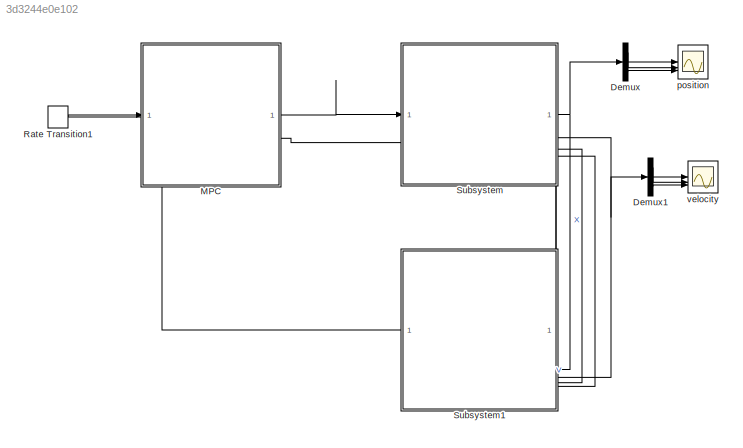
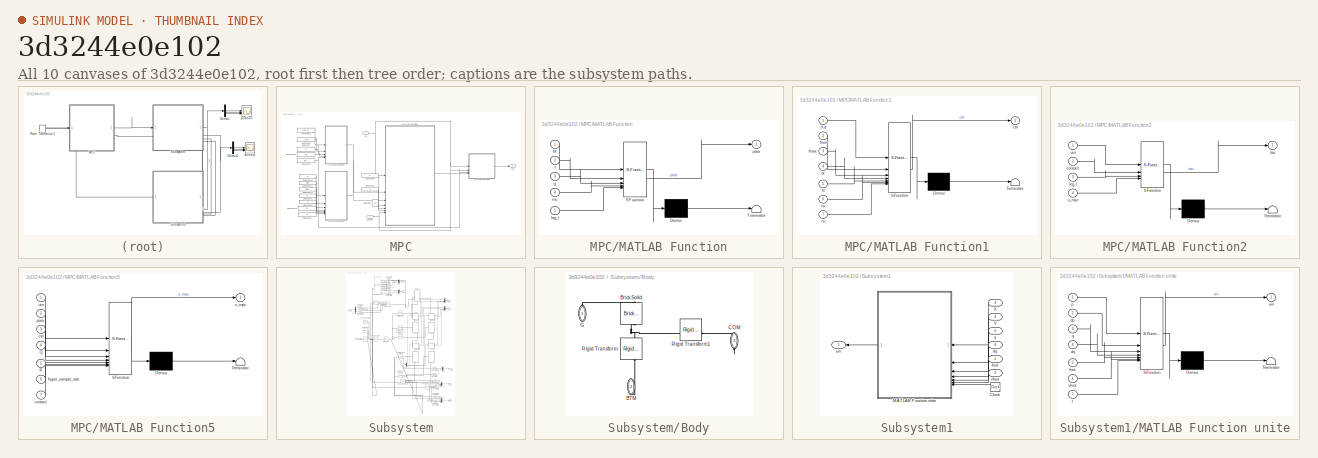
[diagram: thumbnail index - all 10 canvases of the model, root first then tree order]
MODEL slx_3d3244e0e102
KIND model
CONFIG AbsTol = 1e-3
CONFIG EnableMultiTasking = on
CONFIG FixedStep = 0.001
CONFIG MaxStep = auto
CONFIG MinStep = auto
CONFIG RelTol = 1e-3
CONFIG SampleTimeConstraint = Unconstrained
CONFIG SolverName = VariableStepAuto
CONFIG StartTime = 0.0
CONFIG StopTime = 2
BLOCK [Demux] Demux
  Outputs = 3
BLOCK [Demux] Demux1
  Outputs = 3
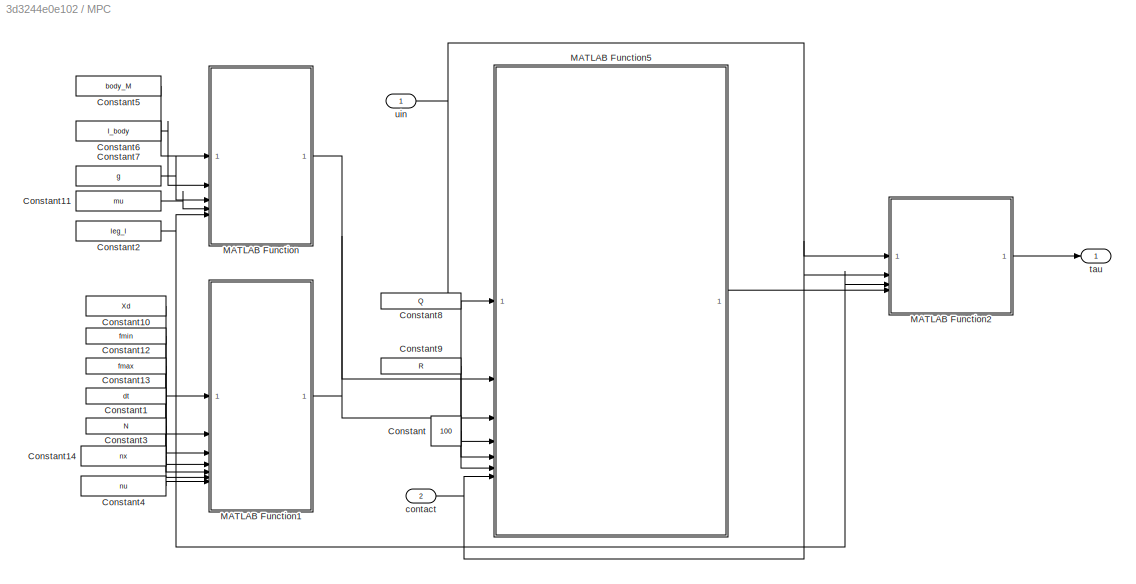
BLOCK [SubSystem] MPC
  PortSchema = {"entries":[{"content":{"sides":[{"content":{"connectorIds":["In1"]},"type":"ConnectorPlacement.EquallySpacedRectSide","uuid":"7755f66a-089b-46e4-92c0-c3e9c40e95fb"},{"content":{"connectorIds":["Out1"],"side":"RIGHT"},"type":"ConnectorPlacement.EquallySpacedRectSide","uuid":"943a16f1-0e5d-4070-b60c-d2bd891a8981"},{"content":{"connectorIds":["In2"],"side":"TOP"},"type":"ConnectorPlacement.EquallySp...<+245ch>
BLOCK [Constant] MPC/Constant
  Value = 100
BLOCK [Constant] MPC/Constant1
  Value = dt
BLOCK [Constant] MPC/Constant10
  Value = Xd
BLOCK [Constant] MPC/Constant11
  Value = mu
BLOCK [Constant] MPC/Constant12
  Value = fmin
BLOCK [Constant] MPC/Constant13
  Value = fmax
BLOCK [Constant] MPC/Constant14
  Value = nx
BLOCK [Constant] MPC/Constant2
  Value = leg_l
BLOCK [Constant] MPC/Constant3
  Value = N
BLOCK [Constant] MPC/Constant4
  Value = nu
BLOCK [Constant] MPC/Constant5
  Value = body_M
BLOCK [Constant] MPC/Constant6
  Value = I_body
BLOCK [Constant] MPC/Constant7
  Value = g
BLOCK [Constant] MPC/Constant8
  Value = Q
BLOCK [Constant] MPC/Constant9
  Value = R
BLOCK [SubSystem] MPC/MATLAB Function
  ErrorFcn = Stateflow.Translate.translate
  PermitHierarchicalResolution = ExplicitOnly
  SFBlockType = MATLAB Function
  SystemSampleTime = sampling_time
  TreatAsAtomicUnit = on
BLOCK [Demux] MPC/MATLAB Function/ Demux 
  Outputs = 1
BLOCK [S-Function] MPC/MATLAB Function/ SFunction 
  EnableBusSupport = on
  FunctionName = sf_sfun
  PortCounts = [5 2]
  SFcnIsStateOwnerBlock = off
  SFunctionDeploymentMode = off
  Tag = Stateflow S-Function 2
BLOCK [Terminator] MPC/MATLAB Function/ Terminator 
BLOCK [Inport] MPC/MATLAB Function/I
  Port = 2
BLOCK [Inport] MPC/MATLAB Function/M
BLOCK [Inport] MPC/MATLAB Function/g
  Port = 3
BLOCK [Inport] MPC/MATLAB Function/leg_l
  Port = 5
BLOCK [Inport] MPC/MATLAB Function/mu
  Port = 4
BLOCK [Outport] MPC/MATLAB Function/para
BLOCK [SubSystem] MPC/MATLAB Function1
  ErrorFcn = Stateflow.Translate.translate
  PermitHierarchicalResolution = ExplicitOnly
  SFBlockType = MATLAB Function
  SystemSampleTime = sampling_time
  TreatAsAtomicUnit = on
BLOCK [Demux] MPC/MATLAB Function1/ Demux 
  Outputs = 1
BLOCK [S-Function] MPC/MATLAB Function1/ SFunction 
  EnableBusSupport = on
  FunctionName = sf_sfun
  PortCounts = [7 2]
  SFcnIsStateOwnerBlock = off
  SFunctionDeploymentMode = off
  Tag = Stateflow S-Function 6
BLOCK [Terminator] MPC/MATLAB Function1/ Terminator 
BLOCK [Inport] MPC/MATLAB Function1/N
  Port = 5
BLOCK [Inport] MPC/MATLAB Function1/Xd
BLOCK [Outport] MPC/MATLAB Function1/ctrl
BLOCK [Inport] MPC/MATLAB Function1/dt
  Port = 4
BLOCK [Inport] MPC/MATLAB Function1/fmax
  Port = 3
BLOCK [Inport] MPC/MATLAB Function1/fmin
  Port = 2
BLOCK [Inport] MPC/MATLAB Function1/nu
  Port = 7
BLOCK [Inport] MPC/MATLAB Function1/nx
  Port = 6
BLOCK [SubSystem] MPC/MATLAB Function2
  ErrorFcn = Stateflow.Translate.translate
  PermitHierarchicalResolution = ExplicitOnly
  SFBlockType = MATLAB Function
  SystemSampleTime = sampling_time
  TreatAsAtomicUnit = on
BLOCK [Demux] MPC/MATLAB Function2/ Demux 
  Outputs = 1
BLOCK [S-Function] MPC/MATLAB Function2/ SFunction 
  EnableBusSupport = on
  FunctionName = sf_sfun
  PortCounts = [4 2]
  SFcnIsStateOwnerBlock = off
  SFunctionDeploymentMode = off
  Tag = Stateflow S-Function 1
BLOCK [Terminator] MPC/MATLAB Function2/ Terminator 
BLOCK [Inport] MPC/MATLAB Function2/contact
  Port = 2
BLOCK [Inport] MPC/MATLAB Function2/leg_l
  Port = 3
BLOCK [Outport] MPC/MATLAB Function2/tau
BLOCK [Inport] MPC/MATLAB Function2/u_mpc
  Port = 4
BLOCK [Inport] MPC/MATLAB Function2/uin
BLOCK [SubSystem] MPC/MATLAB Function5
  ErrorFcn = Stateflow.Translate.translate
  PermitHierarchicalResolution = ExplicitOnly
  SFBlockType = MATLAB Function
  SystemSampleTime = sampling_time
  TreatAsAtomicUnit = on
BLOCK [Demux] MPC/MATLAB Function5/ Demux 
  Outputs = 1
BLOCK [S-Function] MPC/MATLAB Function5/ SFunction 
  EnableBusSupport = on
  FunctionName = sf_sfun
  PortCounts = [7 2]
  SFcnIsStateOwnerBlock = off
  SFunctionDeploymentMode = off
  Tag = Stateflow S-Function 5
BLOCK [Terminator] MPC/MATLAB Function5/ Terminator 
BLOCK [Inport] MPC/MATLAB Function5/Q
  Port = 4
BLOCK [Inport] MPC/MATLAB Function5/R
  Port = 5
BLOCK [Inport] MPC/MATLAB Function5/contact
  Port = 7
BLOCK [Inport] MPC/MATLAB Function5/ctrl
  Port = 3
BLOCK [Inport] MPC/MATLAB Function5/hyper_sample_rate
  Port = 6
BLOCK [Inport] MPC/MATLAB Function5/para
  Port = 2
BLOCK [Outport] MPC/MATLAB Function5/u_mpc
BLOCK [Inport] MPC/MATLAB Function5/uin
BLOCK [Inport] MPC/contact
  Port = 2
BLOCK [Outport] MPC/tau
BLOCK [Inport] MPC/uin
BLOCK [RateTransition] Rate Transition1
  OutPortSampleTime = sampling_time
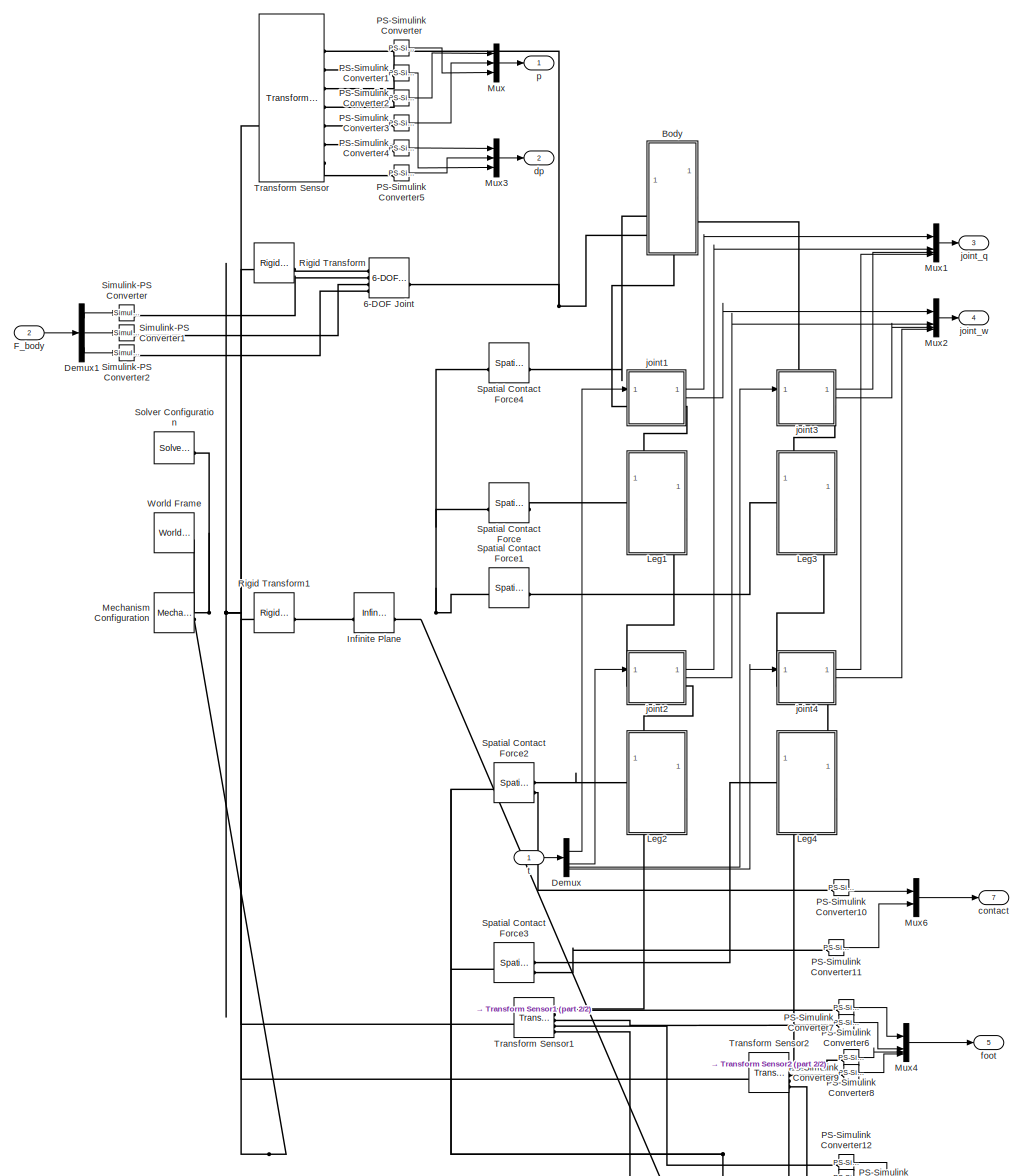
[diagram: Subsystem - part 1/2, most of the canvas]
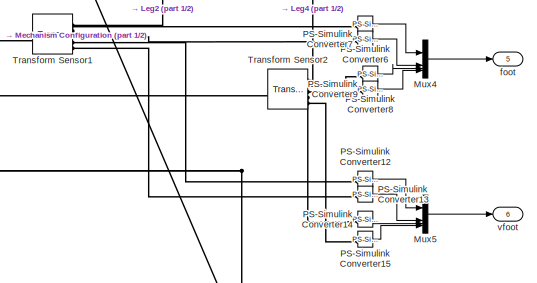
[diagram: Subsystem - part 2/2, bottom right region]
BLOCK [SubSystem] Subsystem
  PortSchema = {"entries":[{"content":{"sides":[{"content":{"connectorIds":["In1","In2"]},"type":"ConnectorPlacement.EquallySpacedRectSide","uuid":"9e14fbd9-eaa0-4256-8e66-0c219a787e7c"},{"content":{"connectorIds":["Out1","Out2","Out3","Out4"],"side":"RIGHT"},"type":"ConnectorPlacement.EquallySpacedRectSide","uuid":"c23d42a1-055f-4752-9dc4-fd87ef91a4c0"},{"content":{"connectorIds":["Out7"],"side":"TOP"},"type":"...<+430ch>
BLOCK [Reference] Subsystem/6-DOF Joint  REF=sm_lib/Joints/6-DOF Joint
  SourceBlock = sm_lib/Joints/6-DOF Joint
  SourceType = 6-DOF Joint
BLOCK [SubSystem] Subsystem/Body
  PortSchema = {"entries":[{"content":{"sides":[{"content":{"connectorIds":["LConn1"]},"type":"ConnectorPlacement.EquallySpacedRectSide","uuid":"ef732868-a6ed-4fe4-817e-f9b9b43bcca9"},{"content":{"side":"RIGHT"},"type":"ConnectorPlacement.EquallySpacedRectSide","uuid":"7258e0b6-9c16-4231-a684-803b12dc5dbb"},{"content":{"side":"TOP"},"type":"ConnectorPlacement.EquallySpacedRectSide","uuid":"2620e2ed-2a50-4d1a-a22...<+362ch>
BLOCK [PMIOPort] Subsystem/Body/BTM
  NameLocation = left
  Port = 2
  Side = Right
BLOCK [Reference] Subsystem/Body/Brick Solid  REF=sm_lib/Body Elements/Brick Solid
  NameLocation = top
  SourceBlock = sm_lib/Body Elements/Brick Solid
  SourceType = Brick Solid
BLOCK [PMIOPort] Subsystem/Body/COM
  NameLocation = left
  Port = 3
  Side = Right
BLOCK [PMIOPort] Subsystem/Body/G
  NameLocation = left
  Side = Left
BLOCK [Reference] Subsystem/Body/Rigid Transform  REF=sm_lib/Frames and
Transforms/Rigid
Transform
  NameLocation = left
  SourceBlock = sm_lib/Frames and\nTransforms/Rigid\nTransform
  SourceType = Rigid\nTransform
BLOCK [Reference] Subsystem/Body/Rigid Transform1  REF=sm_lib/Frames and
Transforms/Rigid
Transform
  SourceBlock = sm_lib/Frames and\nTransforms/Rigid\nTransform
  SourceType = Rigid\nTransform
BLOCK [Demux] Subsystem/Demux
BLOCK [Demux] Subsystem/Demux1
  Outputs = 3
BLOCK [Inport] Subsystem/F_body
  Port = 2
BLOCK [Reference] Subsystem/Infinite Plane  REF=sm_lib/Curves and Surfaces/Infinite Plane
  SourceBlock = sm_lib/Curves and Surfaces/Infinite Plane
  SourceType = Infinite Plane
BLOCK [SubSystem] Subsystem/Leg1
  B = 0.76
  G = 0.41
  PortSchema = {"entries":[{"content":{"sides":[{"content":{"connectorIds":["LConn1"]},"type":"ConnectorPlacement.EquallySpacedRectSide","uuid":"488f091b-67f3-4641-8360-22ce5240ae7f"},{"content":{"side":"RIGHT"},"type":"ConnectorPlacement.EquallySpacedRectSide","uuid":"4ff6c1cd-91cf-49f0-96c7-c99ee0019842"},{"content":{"connectorIds":["LConn2"],"side":"TOP"},"type":"ConnectorPlacement.EquallySpacedRectSide","uui...<+379ch>  <repeated x4 — deduplicated; at blocks: Leg1, Leg2, Leg3, Leg4>
  R = 0.18
  ReferencedSubsystem = Leg
  l = leg_l
  m = leg_m
BLOCK [SubSystem] Subsystem/Leg2
  B = 0
  G = 0.28
  R = 0.82
  ReferencedSubsystem = Leg
  l = leg_l
  m = leg_m
BLOCK [SubSystem] Subsystem/Leg3
  B = 0.18
  G = 0.64
  R = 0.31
  ReferencedSubsystem = Leg
  l = leg_l
  m = leg_m
BLOCK [SubSystem] Subsystem/Leg4
  B = 0.27
  G = 0.84
  R = 1
  ReferencedSubsystem = Leg
  l = leg_l
  m = leg_m
BLOCK [Reference] Subsystem/Mechanism Configuration  REF=sm_lib/Utilities/Mechanism
Configuration
  SourceBlock = sm_lib/Utilities/Mechanism\nConfiguration
  SourceType = Mechanism\nConfiguration
BLOCK [Mux] Subsystem/Mux
  DisplayOption = bar
  Inputs = 3
BLOCK [Mux] Subsystem/Mux1
  DisplayOption = bar
BLOCK [Mux] Subsystem/Mux2
  DisplayOption = bar
BLOCK [Mux] Subsystem/Mux3
  DisplayOption = bar
  Inputs = 3
BLOCK [Mux] Subsystem/Mux4
  DisplayOption = bar
BLOCK [Mux] Subsystem/Mux5
  DisplayOption = bar
BLOCK [Mux] Subsystem/Mux6
  DisplayOption = bar
  Inputs = 2
BLOCK [Reference] Subsystem/PS-Simulink Converter  REF=nesl_utility/PS-Simulink
Converter
  SourceBlock = nesl_utility/PS-Simulink\nConverter
  SourceType = PS-Simulink\nConverter
BLOCK [Reference] Subsystem/PS-Simulink Converter1  REF=nesl_utility/PS-Simulink
Converter
  SourceBlock = nesl_utility/PS-Simulink\nConverter
  SourceType = PS-Simulink\nConverter
BLOCK [Reference] Subsystem/PS-Simulink Converter10  REF=nesl_utility/PS-Simulink
Converter
  SourceBlock = nesl_utility/PS-Simulink\nConverter
  SourceType = PS-Simulink\nConverter
BLOCK [Reference] Subsystem/PS-Simulink Converter11  REF=nesl_utility/PS-Simulink
Converter
  SourceBlock = nesl_utility/PS-Simulink\nConverter
  SourceType = PS-Simulink\nConverter
BLOCK [Reference] Subsystem/PS-Simulink Converter12  REF=nesl_utility/PS-Simulink
Converter
  SourceBlock = nesl_utility/PS-Simulink\nConverter
  SourceType = PS-Simulink\nConverter
BLOCK [Reference] Subsystem/PS-Simulink Converter13  REF=nesl_utility/PS-Simulink
Converter
  SourceBlock = nesl_utility/PS-Simulink\nConverter
  SourceType = PS-Simulink\nConverter
BLOCK [Reference] Subsystem/PS-Simulink Converter14  REF=nesl_utility/PS-Simulink
Converter
  SourceBlock = nesl_utility/PS-Simulink\nConverter
  SourceType = PS-Simulink\nConverter
BLOCK [Reference] Subsystem/PS-Simulink Converter15  REF=nesl_utility/PS-Simulink
Converter
  SourceBlock = nesl_utility/PS-Simulink\nConverter
  SourceType = PS-Simulink\nConverter
BLOCK [Reference] Subsystem/PS-Simulink Converter2  REF=nesl_utility/PS-Simulink
Converter
  SourceBlock = nesl_utility/PS-Simulink\nConverter
  SourceType = PS-Simulink\nConverter
BLOCK [Reference] Subsystem/PS-Simulink Converter3  REF=nesl_utility/PS-Simulink
Converter
  SourceBlock = nesl_utility/PS-Simulink\nConverter
  SourceType = PS-Simulink\nConverter
BLOCK [Reference] Subsystem/PS-Simulink Converter4  REF=nesl_utility/PS-Simulink
Converter
  SourceBlock = nesl_utility/PS-Simulink\nConverter
  SourceType = PS-Simulink\nConverter
BLOCK [Reference] Subsystem/PS-Simulink Converter5  REF=nesl_utility/PS-Simulink
Converter
  SourceBlock = nesl_utility/PS-Simulink\nConverter
  SourceType = PS-Simulink\nConverter
BLOCK [Reference] Subsystem/PS-Simulink Converter6  REF=nesl_utility/PS-Simulink
Converter
  SourceBlock = nesl_utility/PS-Simulink\nConverter
  SourceType = PS-Simulink\nConverter
BLOCK [Reference] Subsystem/PS-Simulink Converter7  REF=nesl_utility/PS-Simulink
Converter
  SourceBlock = nesl_utility/PS-Simulink\nConverter
  SourceType = PS-Simulink\nConverter
BLOCK [Reference] Subsystem/PS-Simulink Converter8  REF=nesl_utility/PS-Simulink
Converter
  SourceBlock = nesl_utility/PS-Simulink\nConverter
  SourceType = PS-Simulink\nConverter
BLOCK [Reference] Subsystem/PS-Simulink Converter9  REF=nesl_utility/PS-Simulink
Converter
  SourceBlock = nesl_utility/PS-Simulink\nConverter
  SourceType = PS-Simulink\nConverter
BLOCK [Reference] Subsystem/Rigid Transform  REF=sm_lib/Frames and
Transforms/Rigid
Transform
  SourceBlock = sm_lib/Frames and\nTransforms/Rigid\nTransform
  SourceType = Rigid\nTransform
BLOCK [Reference] Subsystem/Rigid Transform1  REF=sm_lib/Frames and
Transforms/Rigid
Transform
  SourceBlock = sm_lib/Frames and\nTransforms/Rigid\nTransform
  SourceType = Rigid\nTransform
BLOCK [Reference] Subsystem/Simulink-PS Converter  REF=nesl_utility/Simulink-PS
Converter
  SourceBlock = nesl_utility/Simulink-PS\nConverter
  SourceType = Simulink-PS\nConverter
BLOCK [Reference] Subsystem/Simulink-PS Converter1  REF=nesl_utility/Simulink-PS
Converter
  SourceBlock = nesl_utility/Simulink-PS\nConverter
  SourceType = Simulink-PS\nConverter
BLOCK [Reference] Subsystem/Simulink-PS Converter2  REF=nesl_utility/Simulink-PS
Converter
  SourceBlock = nesl_utility/Simulink-PS\nConverter
  SourceType = Simulink-PS\nConverter
BLOCK [Reference] Subsystem/Solver Configuration  REF=nesl_utility/Solver
Configuration
  SourceBlock = nesl_utility/Solver\nConfiguration
  SourceType = Solver\nConfiguration
BLOCK [Reference] Subsystem/Spatial Contact Force  REF=sm_lib/Forces and
Torques/Spatial
Contact Force
  SourceBlock = sm_lib/Forces and\nTorques/Spatial\nContact Force
  SourceType = Spatial\nContact Force
BLOCK [Reference] Subsystem/Spatial Contact Force1  REF=sm_lib/Forces and
Torques/Spatial
Contact Force
  SourceBlock = sm_lib/Forces and\nTorques/Spatial\nContact Force
  SourceType = Spatial\nContact Force
BLOCK [Reference] Subsystem/Spatial Contact Force2  REF=sm_lib/Forces and
Torques/Spatial
Contact Force
  SourceBlock = sm_lib/Forces and\nTorques/Spatial\nContact Force
  SourceType = Spatial\nContact Force
BLOCK [Reference] Subsystem/Spatial Contact Force3  REF=sm_lib/Forces and
Torques/Spatial
Contact Force
  SourceBlock = sm_lib/Forces and\nTorques/Spatial\nContact Force
  SourceType = Spatial\nContact Force
BLOCK [Reference] Subsystem/Spatial Contact Force4  REF=sm_lib/Forces and
Torques/Spatial
Contact Force
  SourceBlock = sm_lib/Forces and\nTorques/Spatial\nContact Force
  SourceType = Spatial\nContact Force
BLOCK [Reference] Subsystem/Transform Sensor  REF=sm_lib/Frames and
Transforms/Transform
Sensor
  SourceBlock = sm_lib/Frames and\nTransforms/Transform\nSensor
  SourceType = Transform\nSensor
BLOCK [Reference] Subsystem/Transform Sensor1  REF=sm_lib/Frames and
Transforms/Transform
Sensor
  SourceBlock = sm_lib/Frames and\nTransforms/Transform\nSensor
  SourceType = Transform\nSensor
BLOCK [Reference] Subsystem/Transform Sensor2  REF=sm_lib/Frames and
Transforms/Transform
Sensor
  SourceBlock = sm_lib/Frames and\nTransforms/Transform\nSensor
  SourceType = Transform\nSensor
BLOCK [Reference] Subsystem/World Frame  REF=sm_lib/Frames and
Transforms/World Frame
  SourceBlock = sm_lib/Frames and\nTransforms/World Frame
  SourceType = World Frame
BLOCK [Outport] Subsystem/contact
  Port = 7
BLOCK [Outport] Subsystem/dp
  Port = 2
BLOCK [Outport] Subsystem/foot
  Port = 5
BLOCK [SubSystem] Subsystem/joint1
  ReferencedSubsystem = hip
  q0 = q0(1)
BLOCK [SubSystem] Subsystem/joint2
  ReferencedSubsystem = knee
  q0 = q0(2)
BLOCK [SubSystem] Subsystem/joint3
  ReferencedSubsystem = hip
  q0 = q0(3)
BLOCK [SubSystem] Subsystem/joint4
  ReferencedSubsystem = knee
  q0 = q0(4)
BLOCK [Outport] Subsystem/joint_q
  Port = 3
BLOCK [Outport] Subsystem/joint_w
  Port = 4
BLOCK [Outport] Subsystem/p
BLOCK [Inport] Subsystem/t
BLOCK [Outport] Subsystem/vfoot
  Port = 6
BLOCK [SubSystem] Subsystem1
  PortSchema = {"entries":[{"content":{"sides":[{"content":{"connectorIds":["Out1"]},"type":"ConnectorPlacement.EquallySpacedRectSide","uuid":"e1beb7b3-6f34-4e72-aef5-127d40873cd5"},{"content":{"connectorIds":["In3","In4","In5","In6"],"side":"RIGHT"},"type":"ConnectorPlacement.EquallySpacedRectSide","uuid":"a03fb756-2f34-4479-8628-3e3c73474a7f"},{"content":{"connectorIds":["In1","In2"],"side":"TOP"},"type":"Conn...<+269ch>
BLOCK [Clock] Subsystem1/Clock
  NameLocation = top
BLOCK [SubSystem] Subsystem1/MATLAB Function unite
  ErrorFcn = Stateflow.Translate.translate
  NameLocation = top
  PermitHierarchicalResolution = ExplicitOnly
  SFBlockType = MATLAB Function
  TreatAsAtomicUnit = on
BLOCK [Demux] Subsystem1/MATLAB Function unite/ Demux 
  Outputs = 1
BLOCK [S-Function] Subsystem1/MATLAB Function unite/ SFunction 
  EnableBusSupport = on
  FunctionName = sf_sfun
  PortCounts = [7 2]
  SFcnIsStateOwnerBlock = off
  SFunctionDeploymentMode = off
  Tag = Stateflow S-Function 11
BLOCK [Terminator] Subsystem1/MATLAB Function unite/ Terminator 
BLOCK [Inport] Subsystem1/MATLAB Function unite/dp
  Port = 2
BLOCK [Inport] Subsystem1/MATLAB Function unite/dq
  Port = 4
BLOCK [Inport] Subsystem1/MATLAB Function unite/foot
  Port = 5
BLOCK [Inport] Subsystem1/MATLAB Function unite/p
BLOCK [Inport] Subsystem1/MATLAB Function unite/q
  Port = 3
BLOCK [Inport] Subsystem1/MATLAB Function unite/t
  Port = 7
BLOCK [Outport] Subsystem1/MATLAB Function unite/uin
BLOCK [Inport] Subsystem1/MATLAB Function unite/vfoot
  Port = 6
BLOCK [Inport] Subsystem1/V
  NameLocation = top
  Port = 4
BLOCK [Inport] Subsystem1/X
  NameLocation = top
  Port = 3
BLOCK [Inport] Subsystem1/dq
  NameLocation = top
  Port = 6
BLOCK [Inport] Subsystem1/foot
  NameLocation = top
BLOCK [Inport] Subsystem1/q
  NameLocation = top
  Port = 5
BLOCK [Outport] Subsystem1/uin
  NameLocation = top
BLOCK [Inport] Subsystem1/vfoot
  NameLocation = top
  Port = 2
BLOCK [Scope] position
  Floating = off
  NumInputPorts = 3
  ScopeSpecificationString = Simulink.scopes.TimeScopeBlockCfg('CurrentConfiguration', extmgr.ConfigurationSet(extmgr.Configuration('Core','General UI',true),extmgr.Configuration('Core','Source UI',true),extmgr.Configuration('Sources','WiredSimulink',true,'DataLoggingVariableName','ScopeData1'),extmgr.Configuration('Visuals','Time Domain',true,'SerializedDisplays',{struct('MinYLimReal','-0.0079','MaxYLimReal','0.06875','YLabe...<+3347ch>
BLOCK [Scope] velocity
  Floating = off
  NumInputPorts = 3
  ScopeSpecificationString = Simulink.scopes.TimeScopeBlockCfg('CurrentConfiguration', extmgr.ConfigurationSet(extmgr.Configuration('Core','General UI',true),extmgr.Configuration('Core','Source UI',true),extmgr.Configuration('Sources','WiredSimulink',true,'DataLoggingVariableName','ScopeData1'),extmgr.Configuration('Visuals','Time Domain',true,'SerializedDisplays',{struct('MinYLimReal','-0.03254','MaxYLimReal','0.02343','YLab...<+3056ch>
LINE Demux1:1 -> velocity:1
LINE Demux1:2 -> velocity:2
LINE Demux1:3 -> velocity:3
LINE Demux:1 -> position:1
LINE Demux:2 -> position:2
LINE Demux:3 -> position:3
LINE MPC/Constant10:1 -> MPC/MATLAB Function1:1
LINE MPC/Constant11:1 -> MPC/MATLAB Function:4
LINE MPC/Constant12:1 -> MPC/MATLAB Function1:2
LINE MPC/Constant13:1 -> MPC/MATLAB Function1:3
LINE MPC/Constant14:1 -> MPC/MATLAB Function1:6
LINE MPC/Constant1:1 -> MPC/MATLAB Function1:4
NET MPC/Constant2:1 -> MPC/MATLAB Function2:3, MPC/MATLAB Function:5
LINE MPC/Constant3:1 -> MPC/MATLAB Function1:5
LINE MPC/Constant4:1 -> MPC/MATLAB Function1:7
LINE MPC/Constant5:1 -> MPC/MATLAB Function:1
LINE MPC/Constant6:1 -> MPC/MATLAB Function:2
LINE MPC/Constant7:1 -> MPC/MATLAB Function:3
LINE MPC/Constant8:1 -> MPC/MATLAB Function5:4
LINE MPC/Constant9:1 -> MPC/MATLAB Function5:5
LINE MPC/Constant:1 -> MPC/MATLAB Function5:6
LINE MPC/MATLAB Function1:1 -> MPC/MATLAB Function5:3
LINE MPC/MATLAB Function2:1 -> MPC/tau:1
LINE MPC/MATLAB Function5:1 -> MPC/MATLAB Function2:4
LINE MPC/MATLAB Function:1 -> MPC/MATLAB Function5:2
NET MPC/contact:1 -> MPC/MATLAB Function2:2, MPC/MATLAB Function5:7
NET MPC/uin:1 -> MPC/MATLAB Function2:1, MPC/MATLAB Function5:1
LINE MPC:1 -> Subsystem:1
LINE Rate Transition1:1 -> MPC:1
LINE Subsystem/Demux1:1 -> Subsystem/Simulink-PS Converter:1
LINE Subsystem/Demux1:2 -> Subsystem/Simulink-PS Converter1:1
LINE Subsystem/Demux1:3 -> Subsystem/Simulink-PS Converter2:1
LINE Subsystem/Demux:1 -> Subsystem/joint1:1
LINE Subsystem/Demux:2 -> Subsystem/joint2:1
LINE Subsystem/Demux:3 -> Subsystem/joint3:1
LINE Subsystem/Demux:4 -> Subsystem/joint4:1
LINE Subsystem/F_body:1 -> Subsystem/Demux1:1
LINE Subsystem/Mux1:1 -> Subsystem/joint_q:1
LINE Subsystem/Mux2:1 -> Subsystem/joint_w:1
LINE Subsystem/Mux3:1 -> Subsystem/dp:1
LINE Subsystem/Mux4:1 -> Subsystem/foot:1
LINE Subsystem/Mux5:1 -> Subsystem/vfoot:1
LINE Subsystem/Mux6:1 -> Subsystem/contact:1
LINE Subsystem/Mux:1 -> Subsystem/p:1
LINE Subsystem/PS-Simulink Converter10:1 -> Subsystem/Mux6:1
LINE Subsystem/PS-Simulink Converter11:1 -> Subsystem/Mux6:2
LINE Subsystem/PS-Simulink Converter12:1 -> Subsystem/Mux5:1
LINE Subsystem/PS-Simulink Converter13:1 -> Subsystem/Mux5:2
LINE Subsystem/PS-Simulink Converter14:1 -> Subsystem/Mux5:3
LINE Subsystem/PS-Simulink Converter15:1 -> Subsystem/Mux5:4
LINE Subsystem/PS-Simulink Converter1:1 -> Subsystem/Mux3:3
LINE Subsystem/PS-Simulink Converter2:1 -> Subsystem/Mux:1
LINE Subsystem/PS-Simulink Converter3:1 -> Subsystem/Mux:2
LINE Subsystem/PS-Simulink Converter4:1 -> Subsystem/Mux3:1
LINE Subsystem/PS-Simulink Converter5:1 -> Subsystem/Mux3:2
LINE Subsystem/PS-Simulink Converter6:1 -> Subsystem/Mux4:1
LINE Subsystem/PS-Simulink Converter7:1 -> Subsystem/Mux4:2
LINE Subsystem/PS-Simulink Converter8:1 -> Subsystem/Mux4:3
LINE Subsystem/PS-Simulink Converter9:1 -> Subsystem/Mux4:4
LINE Subsystem/PS-Simulink Converter:1 -> Subsystem/Mux:3
LINE Subsystem/joint1:1 -> Subsystem/Mux1:1
LINE Subsystem/joint1:2 -> Subsystem/Mux2:1
LINE Subsystem/joint2:1 -> Subsystem/Mux1:2
LINE Subsystem/joint2:2 -> Subsystem/Mux2:2
LINE Subsystem/joint3:1 -> Subsystem/Mux1:3
LINE Subsystem/joint3:2 -> Subsystem/Mux2:3
LINE Subsystem/joint4:1 -> Subsystem/Mux1:4
LINE Subsystem/joint4:2 -> Subsystem/Mux2:4
LINE Subsystem/t:1 -> Subsystem/Demux:1
LINE Subsystem1/Clock:1 -> Subsystem1/MATLAB Function unite:7
LINE Subsystem1/MATLAB Function unite:1 -> Subsystem1/uin:1
LINE Subsystem1/V:1 -> Subsystem1/MATLAB Function unite:2
LINE Subsystem1/X:1 -> Subsystem1/MATLAB Function unite:1
LINE Subsystem1/dq:1 -> Subsystem1/MATLAB Function unite:4
LINE Subsystem1/foot:1 -> Subsystem1/MATLAB Function unite:5
LINE Subsystem1/q:1 -> Subsystem1/MATLAB Function unite:3
LINE Subsystem1/vfoot:1 -> Subsystem1/MATLAB Function unite:6
LINE Subsystem1:1 -> Rate Transition1:1
NET Subsystem:1 -> Demux:1, Subsystem1:3
NET Subsystem:2 -> Demux1:1, Subsystem1:4
LINE Subsystem:3 -> Subsystem1:5
LINE Subsystem:4 -> Subsystem1:6
LINE Subsystem:5 -> Subsystem1:1
LINE Subsystem:6 -> Subsystem1:2
LINE Subsystem:7 -> MPC:2
PLINE Subsystem/6-DOF Joint:LConn1 -- Subsystem/Rigid Transform:RConn1
PLINE Subsystem/6-DOF Joint:LConn2 -- Subsystem/Simulink-PS Converter:RConn1
PLINE Subsystem/6-DOF Joint:LConn3 -- Subsystem/Simulink-PS Converter1:RConn1
PLINE Subsystem/6-DOF Joint:LConn4 -- Subsystem/Simulink-PS Converter2:RConn1
PNET net1: Subsystem/6-DOF Joint:RConn1 -- Subsystem/Body:RConn2 -- Subsystem/Transform Sensor:RConn1
PLINE Subsystem/Body/BTM:RConn1 -- Subsystem/Body/Rigid Transform:RConn1
PLINE Subsystem/Body/Brick Solid:LConn1 -- Subsystem/Body/G:RConn1
PNET net2: Subsystem/Body/Brick Solid:RConn1 -- Subsystem/Body/Rigid Transform1:LConn1 -- Subsystem/Body/Rigid Transform:LConn1
PLINE Subsystem/Body/COM:RConn1 -- Subsystem/Body/Rigid Transform1:RConn1
PLINE Subsystem/Body:LConn1 -- Subsystem/Spatial Contact Force4:RConn1
PNET net3: Subsystem/Body:RConn1 -- Subsystem/joint1:LConn1 -- Subsystem/joint3:LConn1
PLINE Subsystem/Infinite Plane:LConn1 -- Subsystem/Rigid Transform1:RConn1
PNET net4: Subsystem/Infinite Plane:RConn1 -- Subsystem/Spatial Contact Force1:LConn1 -- Subsystem/Spatial Contact Force2:LConn1 -- Subsystem/Spatial Contact Force3:LConn1 -- Subsystem/Spatial Contact Force4:LConn1 -- Subsystem/Spatial Contact Force:LConn1
PLINE Subsystem/Leg1:LConn1 -- Subsystem/Spatial Contact Force:RConn1
PLINE Subsystem/Leg1:LConn2 -- Subsystem/joint1:RConn1
PLINE Subsystem/Leg1:RConn1 -- Subsystem/joint2:LConn1
PLINE Subsystem/Leg2:LConn1 -- Subsystem/Spatial Contact Force2:RConn1
PLINE Subsystem/Leg2:LConn2 -- Subsystem/joint2:RConn1
PLINE Subsystem/Leg2:RConn1 -- Subsystem/Transform Sensor1:RConn1
PLINE Subsystem/Leg3:LConn1 -- Subsystem/Spatial Contact Force1:RConn1
PLINE Subsystem/Leg3:LConn2 -- Subsystem/joint3:RConn1
PLINE Subsystem/Leg3:RConn1 -- Subsystem/joint4:LConn1
PLINE Subsystem/Leg4:LConn1 -- Subsystem/Spatial Contact Force3:RConn1
PLINE Subsystem/Leg4:LConn2 -- Subsystem/joint4:RConn1
PLINE Subsystem/Leg4:RConn1 -- Subsystem/Transform Sensor2:RConn1
PNET net5: Subsystem/Mechanism Configuration:RConn1 -- Subsystem/Rigid Transform1:LConn1 -- Subsystem/Rigid Transform:LConn1 -- Subsystem/Solver Configuration:RConn1 -- Subsystem/Transform Sensor1:LConn1 -- Subsystem/Transform Sensor2:LConn1 -- Subsystem/Transform Sensor:LConn1 -- Subsystem/World Frame:RConn1
PLINE Subsystem/PS-Simulink Converter10:LConn1 -- Subsystem/Spatial Contact Force2:RConn2
PLINE Subsystem/PS-Simulink Converter11:LConn1 -- Subsystem/Spatial Contact Force3:RConn2
PLINE Subsystem/PS-Simulink Converter12:LConn1 -- Subsystem/Transform Sensor1:RConn4
PLINE Subsystem/PS-Simulink Converter13:LConn1 -- Subsystem/Transform Sensor1:RConn5
PLINE Subsystem/PS-Simulink Converter14:LConn1 -- Subsystem/Transform Sensor2:RConn4
PLINE Subsystem/PS-Simulink Converter15:LConn1 -- Subsystem/Transform Sensor2:RConn5
PLINE Subsystem/PS-Simulink Converter1:LConn1 -- Subsystem/Transform Sensor:RConn3
PLINE Subsystem/PS-Simulink Converter2:LConn1 -- Subsystem/Transform Sensor:RConn4
PLINE Subsystem/PS-Simulink Converter3:LConn1 -- Subsystem/Transform Sensor:RConn5
PLINE Subsystem/PS-Simulink Converter4:LConn1 -- Subsystem/Transform Sensor:RConn6
PLINE Subsystem/PS-Simulink Converter5:LConn1 -- Subsystem/Transform Sensor:RConn7
PLINE Subsystem/PS-Simulink Converter6:LConn1 -- Subsystem/Transform Sensor1:RConn2
PLINE Subsystem/PS-Simulink Converter7:LConn1 -- Subsystem/Transform Sensor1:RConn3
PLINE Subsystem/PS-Simulink Converter8:LConn1 -- Subsystem/Transform Sensor2:RConn2
PLINE Subsystem/PS-Simulink Converter9:LConn1 -- Subsystem/Transform Sensor2:RConn3
PLINE Subsystem/PS-Simulink Converter:LConn1 -- Subsystem/Transform Sensor:RConn2
note: NET lines group one-source signal fan-out (src -> all destinations, sorted); 1:1 wires keep LINE; PNET lines group multi-terminal physical nets as a canonical sorted terminal list (undirected conserving connections); 2-terminal nets keep the pairwise PLINE form
CHART MPC/MATLAB Function2 states=1 transitions=1
  STATE_LABEL 'eML_blk_kernel()'
  STATE_LABEL "SCRIPT:\nfunction tau = IFK(uin, contact, leg_l, u_mpc)\n    % Do Force to Torque Mapping, and control swing phases (if walking)\n    q = uin(7:10);\n\n    Jc1 = getJacobian(q(1), q(2), leg_l);\n    Jc2 = getJacobian(q(3), q(4), leg_l);\n\n    R = theta2Rotm(uin(3));\n    if contact(1) && contact(2)\n        tau = [- Jc1' * R' * u_mpc(1:2); - Jc2' * R' * u_mpc(3:4)];\n\n        % swing\n    % elseif contact(1)...<+719ch>"
CHART MPC/MATLAB Function states=1 transitions=1
  STATE_LABEL 'eML_blk_kernel()'
  STATE_LABEL 'SCRIPT:\nfunction para = get_para(M, I ,g, mu, leg_l)\n\n    para = [M; I; g; mu; leg_l];\nend\n\n'
CHART MPC/MATLAB Function5 states=1 transitions=1
  STATE_LABEL 'eML_blk_kernel()'
  STATE_LABEL 'SCRIPT:\nfunction u_mpc = run_QP(uin, para, ctrl, Q, R, hyper_sample_rate, contact)\n    \n    % Extract states\n    X = uin(1:6); %[x,y,theta,dx,dy,dtheta]\n    q = uin(7:10); %[hip1,knee1, hip2, knee2]\n    dq = uin(11:14);\n    foot = uin(15:18); %[x1,y1,x2,y2]\n    t = uin(23);\n    counter = ceil(t*1000);\n    \n    % Extract params\n    M = para(1);\n    I = para(2);\n    g = para(3);\n    mu = para(4);\n  ...<+2962ch>'
CHART MPC/MATLAB Function1 states=1 transitions=1
  STATE_LABEL 'eML_blk_kernel()'
  STATE_LABEL 'SCRIPT:\nfunction ctrl = get_ctrl(Xd, fmin, fmax, dt, N, nx, nu)\n\n    ctrl = [Xd; fmin; fmax; dt; N; nx; nu];\nend\n\n'
CHART Subsystem1/MATLAB Function unite states=1 transitions=1
  STATE_LABEL 'eML_blk_kernel()'
  STATE_LABEL 'SCRIPT:\nfunction uin = unite_state(p,dp,q,dq,foot,vfoot,t)\n    uin = [p;dp;q;dq;foot;vfoot;t];\nend\n'
CHART  states=0 transitions=0
CHART  states=0 transitions=0
CHART  states=0 transitions=0
CHART  states=0 transitions=0
CHART  states=0 transitions=0
